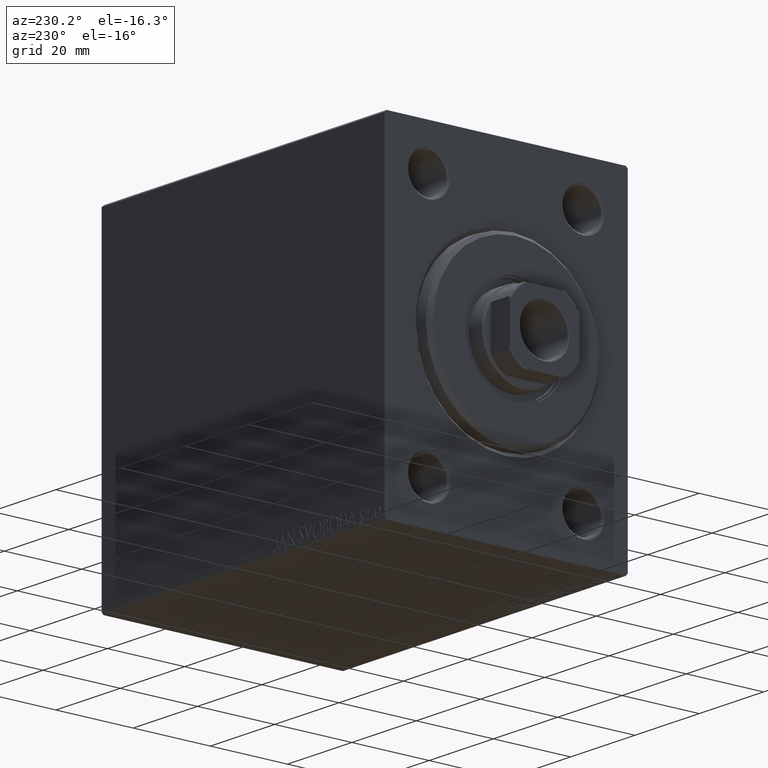
[diagram: clean part render]
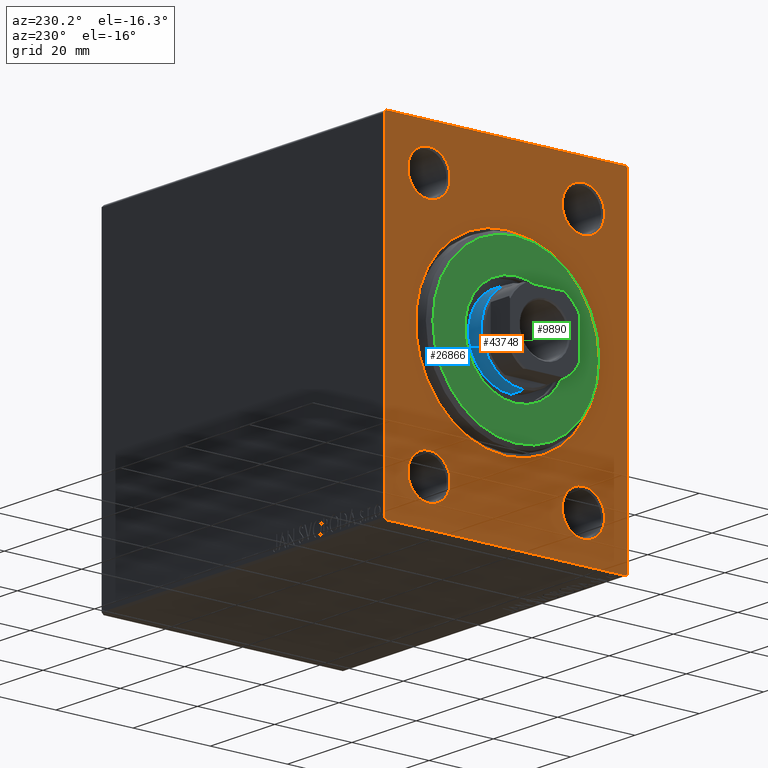
[diagram: same view with three faces highlighted in distinct colors, each labeled with its STEP entity id]
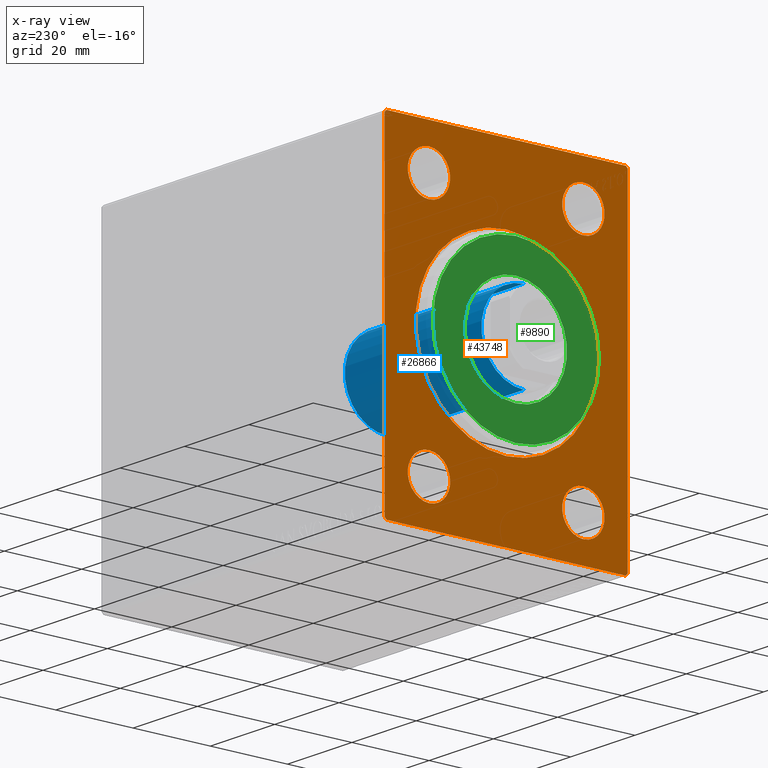
[diagram: x-ray of the same camera — body ghosted, the three highlighted faces saturated]
A machine part, auxiliary view with three faces highlighted in distinct colors.
The next image is the same camera in x-ray (body ghosted, the three faces saturated) — at least one of them is partly hidden behind the body in this view.
Their STEP definitions:

[orange] entity #43748 — the highlighted planar face has unit normal (1, 0, 0).
#185 = DIRECTION ( 'NONE',  ( 0.000000000000000000, 0.000000000000000000, -1.000000000000000000 ) ) ;
#293 = VERTEX_POINT ( 'NONE', #10388 ) ;
#498 = DIRECTION ( 'NONE',  ( 0.000000000000000000, 0.000000000000000000, -1.000000000000000000 ) ) ;
#501 = CARTESIAN_POINT ( 'NONE',  ( 0.000000000000000000, 31.50000000000001421, -42.50000000000000711 ) ) ;
#767 = AXIS2_PLACEMENT_3D ( 'NONE', #27422, #4430, #7776 ) ;
#861 = CARTESIAN_POINT ( 'NONE',  ( 0.000000000000000000, 19.99999999999999645, -25.99999999999999645 ) ) ;
#1044 = VERTEX_POINT ( 'NONE', #28765 ) ;
#1422 = CIRCLE ( 'NONE', #26369, 5.500000000000005329 ) ;
#1485 = VERTEX_POINT ( 'NONE', #14575 ) ;
#1946 = CARTESIAN_POINT ( 'NONE',  ( 0.000000000000000000, -31.50000000000000000, 42.00000000000001421 ) ) ;
#2414 = ORIENTED_EDGE ( 'NONE', *, *, #16840, .T. ) ;
#3098 = EDGE_CURVE ( 'NONE', #9893, #1485, #11134, .T. ) ;
#3298 = ORIENTED_EDGE ( 'NONE', *, *, #27449, .F. ) ;
#3315 = CARTESIAN_POINT ( 'NONE',  ( 0.000000000000000000, -20.00000000000000355, -31.50000000000000000 ) ) ;
#3836 = FACE_BOUND ( 'NONE', #8392, .T. ) ;
#4169 = ORIENTED_EDGE ( 'NONE', *, *, #14970, .T. ) ;
#4263 = EDGE_CURVE ( 'NONE', #36731, #24690, #29690, .T. ) ;
#4326 = VERTEX_POINT ( 'NONE', #25585 ) ;
#4430 = DIRECTION ( 'NONE',  ( 1.000000000000000000, 0.000000000000000000, 0.000000000000000000 ) ) ;
#4510 = EDGE_CURVE ( 'NONE', #43123, #11568, #6398, .T. ) ;
#4549 = ORIENTED_EDGE ( 'NONE', *, *, #11695, .T. ) ;
#5067 = CARTESIAN_POINT ( 'NONE',  ( 0.000000000000000000, 19.99999999999999645, 37.00000000000000711 ) ) ;
#5136 = CARTESIAN_POINT ( 'NONE',  ( 0.000000000000000000, -31.50000000000000000, -42.00000000000002842 ) ) ;
#5687 = AXIS2_PLACEMENT_3D ( 'NONE', #7738, #21125, #185 ) ;
#5939 = DIRECTION ( 'NONE',  ( 0.000000000000000000, 0.000000000000000000, -1.000000000000000000 ) ) ;
#6105 = EDGE_CURVE ( 'NONE', #38256, #28368, #24768, .T. ) ;
#6398 = LINE ( 'NONE', #37202, #14032 ) ;
#6748 = ORIENTED_EDGE ( 'NONE', *, *, #6105, .T. ) ;
#7023 = VERTEX_POINT ( 'NONE', #40750 ) ;
#7738 = CARTESIAN_POINT ( 'NONE',  ( 0.000000000000000000, 19.99999999999999645, 31.50000000000000000 ) ) ;
#7776 = DIRECTION ( 'NONE',  ( 0.000000000000000000, 0.000000000000000000, -1.000000000000000000 ) ) ;
#7930 = DIRECTION ( 'NONE',  ( -0.000000000000000000, 0.7071067811865474617, -0.7071067811865474617 ) ) ;
#7982 = EDGE_CURVE ( 'NONE', #43131, #1044, #37619, .T. ) ;
#8301 = AXIS2_PLACEMENT_3D ( 'NONE', #3315, #40807, #44140 ) ;
#8392 = EDGE_LOOP ( 'NONE', ( #21398, #6748 ) ) ;
#8599 = DIRECTION ( 'NONE',  ( 0.000000000000000000, -0.7071067811865474617, -0.7071067811865474617 ) ) ;
#8718 = VECTOR ( 'NONE', #8809, 1000.000000000000000 ) ;
#8809 = DIRECTION ( 'NONE',  ( 0.000000000000000000, 1.000000000000000000, 0.000000000000000000 ) ) ;
#8814 = CARTESIAN_POINT ( 'NONE',  ( 0.000000000000000000, -31.50000000000000000, 42.49999999999998579 ) ) ;
#9058 = CARTESIAN_POINT ( 'NONE',  ( 0.000000000000000000, 0.000000000000000000, 0.000000000000000000 ) ) ;
#9397 = AXIS2_PLACEMENT_3D ( 'NONE', #27709, #37982, #498 ) ;
#9451 = VERTEX_POINT ( 'NONE', #42656 ) ;
#9743 = EDGE_LOOP ( 'NONE', ( #27979, #24080 ) ) ;
#9893 = VERTEX_POINT ( 'NONE', #16288 ) ;
#9904 = DIRECTION ( 'NONE',  ( 0.000000000000000000, -1.000000000000000000, -1.101411730778925171E-16 ) ) ;
#10060 = ORIENTED_EDGE ( 'NONE', *, *, #32266, .F. ) ;
#10388 = CARTESIAN_POINT ( 'NONE',  ( 0.000000000000000000, 31.50000000000001421, -42.00000000000003553 ) ) ;
#10532 = FACE_BOUND ( 'NONE', #28910, .T. ) ;
#10748 = CARTESIAN_POINT ( 'NONE',  ( 0.000000000000000000, -31.00000000000002842, -42.50000000000000711 ) ) ;
#11134 = CIRCLE ( 'NONE', #37497, 23.49999999999998934 ) ;
#11568 = VERTEX_POINT ( 'NONE', #21231 ) ;
#11695 = EDGE_CURVE ( 'NONE', #293, #9451, #25545, .T. ) ;
#11834 = DIRECTION ( 'NONE',  ( 0.000000000000000000, 0.000000000000000000, -1.000000000000000000 ) ) ;
#12385 = LINE ( 'NONE', #8814, #36276 ) ;
#13074 = EDGE_CURVE ( 'NONE', #1044, #43131, #1422, .T. ) ;
#13875 = FACE_BOUND ( 'NONE', #14855, .T. ) ;
#14012 = EDGE_CURVE ( 'NONE', #26989, #35583, #34940, .T. ) ;
#14032 = VECTOR ( 'NONE', #7930, 1000.000000000000114 ) ;
#14098 = DIRECTION ( 'NONE',  ( 0.000000000000000000, -1.632680918566406547E-16, 1.000000000000000000 ) ) ;
#14575 = CARTESIAN_POINT ( 'NONE',  ( 0.000000000000000000, 2.877919977996279137E-15, -23.49999999999998934 ) ) ;
#14855 = EDGE_LOOP ( 'NONE', ( #20697, #4169 ) ) ;
#14970 = EDGE_CURVE ( 'NONE', #1485, #9893, #24300, .T. ) ;
#15016 = VECTOR ( 'NONE', #14098, 1000.000000000000000 ) ;
#15121 = CARTESIAN_POINT ( 'NONE',  ( 0.000000000000000000, -31.50000000000000000, 42.00000000000001421 ) ) ;
#15317 = EDGE_LOOP ( 'NONE', ( #31720, #2414 ) ) ;
#15401 = CIRCLE ( 'NONE', #33264, 5.500000000000005329 ) ;
#15523 = EDGE_CURVE ( 'NONE', #293, #11568, #24796, .T. ) ;
#15526 = VECTOR ( 'NONE', #23912, 1000.000000000000000 ) ;
#15531 = AXIS2_PLACEMENT_3D ( 'NONE', #20833, #38446, #17484 ) ;
#16288 = CARTESIAN_POINT ( 'NONE',  ( 0.000000000000000000, 0.000000000000000000, 23.49999999999998934 ) ) ;
#16840 = EDGE_CURVE ( 'NONE', #35583, #26989, #32778, .T. ) ;
#17265 = CARTESIAN_POINT ( 'NONE',  ( 0.000000000000000000, 31.50000000000000000, 42.49999999999999289 ) ) ;
#17452 = FACE_OUTER_BOUND ( 'NONE', #18053, .T. ) ;
#17453 = DIRECTION ( 'NONE',  ( 1.000000000000000000, 0.000000000000000000, 0.000000000000000000 ) ) ;
#17484 = DIRECTION ( 'NONE',  ( 0.000000000000000000, 0.000000000000000000, -1.000000000000000000 ) ) ;
#17673 = DIRECTION ( 'NONE',  ( 0.000000000000000000, 0.000000000000000000, -1.000000000000000000 ) ) ;
#18053 = EDGE_LOOP ( 'NONE', ( #10060, #27053, #3298, #34584, #22388, #4549, #43422, #28914 ) ) ;
#18147 = DIRECTION ( 'NONE',  ( 0.000000000000000000, 0.000000000000000000, -1.000000000000000000 ) ) ;
#18190 = CARTESIAN_POINT ( 'NONE',  ( 0.000000000000000000, 31.50000000000001421, -42.00000000000003553 ) ) ;
#18856 = DIRECTION ( 'NONE',  ( 1.000000000000000000, 0.000000000000000000, 0.000000000000000000 ) ) ;
#18884 = VERTEX_POINT ( 'NONE', #1946 ) ;
#19814 = CARTESIAN_POINT ( 'NONE',  ( 0.000000000000000000, -20.00000000000000355, 37.00000000000000711 ) ) ;
#19994 = ORIENTED_EDGE ( 'NONE', *, *, #4263, .T. ) ;
#20332 = EDGE_CURVE ( 'NONE', #18884, #7023, #21591, .T. ) ;
#20697 = ORIENTED_EDGE ( 'NONE', *, *, #3098, .T. ) ;
#20833 = CARTESIAN_POINT ( 'NONE',  ( 0.000000000000000000, -20.00000000000000355, 31.50000000000000000 ) ) ;
#21125 = DIRECTION ( 'NONE',  ( 1.000000000000000000, 0.000000000000000000, 0.000000000000000000 ) ) ;
#21231 = CARTESIAN_POINT ( 'NONE',  ( 0.000000000000000000, 31.50000000000000000, 42.00000000000002132 ) ) ;
#21398 = ORIENTED_EDGE ( 'NONE', *, *, #23796, .T. ) ;
#21591 = LINE ( 'NONE', #15121, #30736 ) ;
#21902 = CARTESIAN_POINT ( 'NONE',  ( 0.000000000000000000, 19.99999999999999645, -37.00000000000000711 ) ) ;
#22388 = ORIENTED_EDGE ( 'NONE', *, *, #15523, .F. ) ;
#22892 = CARTESIAN_POINT ( 'NONE',  ( 0.000000000000000000, 19.99999999999999645, 25.99999999999999645 ) ) ;
#23796 = EDGE_CURVE ( 'NONE', #28368, #38256, #15401, .T. ) ;
#23912 = DIRECTION ( 'NONE',  ( -0.000000000000000000, -0.7071067811865426878, 0.7071067811865524577 ) ) ;
#24080 = ORIENTED_EDGE ( 'NONE', *, *, #13074, .T. ) ;
#24133 = LINE ( 'NONE', #10748, #15526 ) ;
#24142 = CARTESIAN_POINT ( 'NONE',  ( 0.000000000000000000, 19.99999999999999645, 31.50000000000000000 ) ) ;
#24300 = CIRCLE ( 'NONE', #767, 23.49999999999998934 ) ;
#24690 = VERTEX_POINT ( 'NONE', #43775 ) ;
#24719 = DIRECTION ( 'NONE',  ( -0.000000000000000000, 0.7071067811865474617, 0.7071067811865474617 ) ) ;
#24768 = CIRCLE ( 'NONE', #31179, 5.500000000000005329 ) ;
#24796 = LINE ( 'NONE', #501, #15016 ) ;
#25298 = CARTESIAN_POINT ( 'NONE',  ( 0.000000000000000000, -20.00000000000000355, -31.50000000000000000 ) ) ;
#25545 = LINE ( 'NONE', #18190, #28453 ) ;
#25585 = CARTESIAN_POINT ( 'NONE',  ( 0.000000000000000000, -31.00000000000002842, -42.50000000000000711 ) ) ;
#25721 = CARTESIAN_POINT ( 'NONE',  ( 0.000000000000000000, -20.00000000000000355, 31.50000000000000000 ) ) ;
#26369 = AXIS2_PLACEMENT_3D ( 'NONE', #25721, #41782, #18147 ) ;
#26989 = VERTEX_POINT ( 'NONE', #5067 ) ;
#27053 = ORIENTED_EDGE ( 'NONE', *, *, #20332, .T. ) ;
#27091 = AXIS2_PLACEMENT_3D ( 'NONE', #24142, #17453, #17673 ) ;
#27422 = CARTESIAN_POINT ( 'NONE',  ( 0.000000000000000000, 0.000000000000000000, 0.000000000000000000 ) ) ;
#27449 = EDGE_CURVE ( 'NONE', #43123, #7023, #37567, .T. ) ;
#27709 = CARTESIAN_POINT ( 'NONE',  ( 0.000000000000000000, 0.000000000000000000, 0.000000000000000000 ) ) ;
#27979 = ORIENTED_EDGE ( 'NONE', *, *, #7982, .T. ) ;
#28368 = VERTEX_POINT ( 'NONE', #861 ) ;
#28453 = VECTOR ( 'NONE', #8599, 1000.000000000000114 ) ;
#28765 = CARTESIAN_POINT ( 'NONE',  ( 0.000000000000000000, -20.00000000000000355, 25.99999999999999645 ) ) ;
#28910 = EDGE_LOOP ( 'NONE', ( #19994, #35513 ) ) ;
#28914 = ORIENTED_EDGE ( 'NONE', *, *, #29236, .T. ) ;
#29150 = AXIS2_PLACEMENT_3D ( 'NONE', #25298, #38707, #38918 ) ;
#29236 = EDGE_CURVE ( 'NONE', #4326, #41751, #24133, .T. ) ;
#29690 = CIRCLE ( 'NONE', #8301, 5.500000000000005329 ) ;
#30473 = VECTOR ( 'NONE', #9904, 1000.000000000000000 ) ;
#30736 = VECTOR ( 'NONE', #24719, 1000.000000000000114 ) ;
#31064 = PLANE ( 'NONE',  #9397 ) ;
#31179 = AXIS2_PLACEMENT_3D ( 'NONE', #39498, #39285, #11834 ) ;
#31720 = ORIENTED_EDGE ( 'NONE', *, *, #14012, .T. ) ;
#32248 = LINE ( 'NONE', #39590, #8718 ) ;
#32266 = EDGE_CURVE ( 'NONE', #18884, #41751, #12385, .T. ) ;
#32287 = CARTESIAN_POINT ( 'NONE',  ( 0.000000000000000000, -20.00000000000000355, -25.99999999999999645 ) ) ;
#32466 = DIRECTION ( 'NONE',  ( 0.000000000000000000, 0.000000000000000000, -1.000000000000000000 ) ) ;
#32778 = CIRCLE ( 'NONE', #5687, 5.500000000000005329 ) ;
#33264 = AXIS2_PLACEMENT_3D ( 'NONE', #35813, #18856, #32466 ) ;
#34418 = FACE_BOUND ( 'NONE', #15317, .T. ) ;
#34584 = ORIENTED_EDGE ( 'NONE', *, *, #4510, .T. ) ;
#34940 = CIRCLE ( 'NONE', #27091, 5.500000000000005329 ) ;
#35513 = ORIENTED_EDGE ( 'NONE', *, *, #36963, .T. ) ;
#35583 = VERTEX_POINT ( 'NONE', #22892 ) ;
#35813 = CARTESIAN_POINT ( 'NONE',  ( 0.000000000000000000, 19.99999999999999645, -31.50000000000000000 ) ) ;
#36276 = VECTOR ( 'NONE', #36495, 1000.000000000000000 ) ;
#36283 = DIRECTION ( 'NONE',  ( 1.000000000000000000, 0.000000000000000000, 0.000000000000000000 ) ) ;
#36495 = DIRECTION ( 'NONE',  ( 0.000000000000000000, 0.000000000000000000, -1.000000000000000000 ) ) ;
#36731 = VERTEX_POINT ( 'NONE', #32287 ) ;
#36963 = EDGE_CURVE ( 'NONE', #24690, #36731, #38428, .T. ) ;
#36995 = CARTESIAN_POINT ( 'NONE',  ( 0.000000000000000000, 31.00000000000002842, 42.49999999999999289 ) ) ;
#37202 = CARTESIAN_POINT ( 'NONE',  ( 0.000000000000000000, 31.00000000000002842, 42.49999999999999289 ) ) ;
#37497 = AXIS2_PLACEMENT_3D ( 'NONE', #9058, #36283, #5939 ) ;
#37567 = LINE ( 'NONE', #17265, #30473 ) ;
#37619 = CIRCLE ( 'NONE', #15531, 5.500000000000005329 ) ;
#37763 = FACE_BOUND ( 'NONE', #9743, .T. ) ;
#37982 = DIRECTION ( 'NONE',  ( 1.000000000000000000, 0.000000000000000000, 0.000000000000000000 ) ) ;
#38256 = VERTEX_POINT ( 'NONE', #21902 ) ;
#38428 = CIRCLE ( 'NONE', #29150, 5.500000000000005329 ) ;
#38446 = DIRECTION ( 'NONE',  ( 1.000000000000000000, 0.000000000000000000, 0.000000000000000000 ) ) ;
#38707 = DIRECTION ( 'NONE',  ( 1.000000000000000000, 0.000000000000000000, 0.000000000000000000 ) ) ;
#38918 = DIRECTION ( 'NONE',  ( 0.000000000000000000, 0.000000000000000000, -1.000000000000000000 ) ) ;
#39285 = DIRECTION ( 'NONE',  ( 1.000000000000000000, 0.000000000000000000, 0.000000000000000000 ) ) ;
#39498 = CARTESIAN_POINT ( 'NONE',  ( 0.000000000000000000, 19.99999999999999645, -31.50000000000000000 ) ) ;
#39590 = CARTESIAN_POINT ( 'NONE',  ( 0.000000000000000000, -31.50000000000000000, -42.50000000000000711 ) ) ;
#40750 = CARTESIAN_POINT ( 'NONE',  ( 0.000000000000000000, -31.00000000000002842, 42.49999999999998579 ) ) ;
#40807 = DIRECTION ( 'NONE',  ( 1.000000000000000000, 0.000000000000000000, 0.000000000000000000 ) ) ;
#41751 = VERTEX_POINT ( 'NONE', #5136 ) ;
#41782 = DIRECTION ( 'NONE',  ( 1.000000000000000000, 0.000000000000000000, 0.000000000000000000 ) ) ;
#42656 = CARTESIAN_POINT ( 'NONE',  ( 0.000000000000000000, 31.00000000000004263, -42.50000000000000711 ) ) ;
#43123 = VERTEX_POINT ( 'NONE', #36995 ) ;
#43131 = VERTEX_POINT ( 'NONE', #19814 ) ;
#43422 = ORIENTED_EDGE ( 'NONE', *, *, #44051, .F. ) ;
#43748 = ADVANCED_FACE ( 'NONE', ( #13875, #10532, #37763, #34418, #3836, #17452 ), #31064, .F. ) ;
#43775 = CARTESIAN_POINT ( 'NONE',  ( 0.000000000000000000, -20.00000000000000355, -37.00000000000000711 ) ) ;
#44051 = EDGE_CURVE ( 'NONE', #4326, #9451, #32248, .T. ) ;
#44140 = DIRECTION ( 'NONE',  ( 0.000000000000000000, 0.000000000000000000, -1.000000000000000000 ) ) ;

[blue] entity #26866 — the highlighted cylindrical surface (partial cylindrical patch) has radius 11 mm, axis along (1, -0, -0).
#61 = CIRCLE ( 'NONE', #5747, 11.00000000000000000 ) ;
#3099 = DIRECTION ( 'NONE',  ( -0.000000000000000000, -0.000000000000000000, -1.000000000000000000 ) ) ;
#3525 = CARTESIAN_POINT ( 'NONE',  ( 0.000000000000000000, 0.000000000000000000, 81.99999999999998579 ) ) ;
#3668 = DIRECTION ( 'NONE',  ( 0.000000000000000000, 0.000000000000000000, 1.000000000000000000 ) ) ;
#5684 = VECTOR ( 'NONE', #20863, 1000.000000000000000 ) ;
#5747 = AXIS2_PLACEMENT_3D ( 'NONE', #41137, #3668, #30236 ) ;
#6678 = EDGE_CURVE ( 'NONE', #26948, #31563, #10663, .T. ) ;
#7909 = CARTESIAN_POINT ( 'NONE',  ( -11.00000000000000000, 0.000000000000000000, 81.99999999999998579 ) ) ;
#8262 = ORIENTED_EDGE ( 'NONE', *, *, #34980, .F. ) ;
#9206 = AXIS2_PLACEMENT_3D ( 'NONE', #19866, #23852, #10037 ) ;
#9907 = EDGE_CURVE ( 'NONE', #35747, #26948, #21292, .T. ) ;
#10016 = FACE_OUTER_BOUND ( 'NONE', #40976, .T. ) ;
#10037 = DIRECTION ( 'NONE',  ( 1.000000000000000000, 0.000000000000000000, 0.000000000000000000 ) ) ;
#10663 = LINE ( 'NONE', #14001, #20473 ) ;
#11394 = ORIENTED_EDGE ( 'NONE', *, *, #9907, .T. ) ;
#11660 = CARTESIAN_POINT ( 'NONE',  ( 11.00000000000000000, 1.347111479062088405E-15, 39.00000000000000000 ) ) ;
#11758 = CARTESIAN_POINT ( 'NONE',  ( 11.00000000000000000, 1.347111479062088405E-15, 81.49999999999997158 ) ) ;
#13788 = DIRECTION ( 'NONE',  ( -1.000000000000000000, 0.000000000000000000, 0.000000000000000000 ) ) ;
#14001 = CARTESIAN_POINT ( 'NONE',  ( 11.00000000000000000, 1.347111479062088405E-15, 81.99999999999998579 ) ) ;
#15091 = CARTESIAN_POINT ( 'NONE',  ( -11.00000000000000000, 0.000000000000000000, 81.49999999999997158 ) ) ;
#19866 = CARTESIAN_POINT ( 'NONE',  ( 0.000000000000000000, 0.000000000000000000, 81.49999999999997158 ) ) ;
#20103 = ORIENTED_EDGE ( 'NONE', *, *, #40683, .T. ) ;
#20473 = VECTOR ( 'NONE', #27615, 1000.000000000000000 ) ;
#20863 = DIRECTION ( 'NONE',  ( -0.000000000000000000, -0.000000000000000000, -1.000000000000000000 ) ) ;
#21163 = AXIS2_PLACEMENT_3D ( 'NONE', #3525, #3099, #13788 ) ;
#21292 = CIRCLE ( 'NONE', #9206, 11.00000000000000000 ) ;
#23852 = DIRECTION ( 'NONE',  ( 0.000000000000000000, 0.000000000000000000, -1.000000000000000000 ) ) ;
#24369 = ORIENTED_EDGE ( 'NONE', *, *, #6678, .T. ) ;
#26494 = CARTESIAN_POINT ( 'NONE',  ( -11.00000000000000000, 0.000000000000000000, 39.00000000000000000 ) ) ;
#26866 = ADVANCED_FACE ( 'NONE', ( #10016 ), #34101, .T. ) ;
#26948 = VERTEX_POINT ( 'NONE', #11758 ) ;
#27615 = DIRECTION ( 'NONE',  ( -0.000000000000000000, -0.000000000000000000, -1.000000000000000000 ) ) ;
#28642 = VERTEX_POINT ( 'NONE', #26494 ) ;
#30236 = DIRECTION ( 'NONE',  ( 1.000000000000000000, 0.000000000000000000, 0.000000000000000000 ) ) ;
#31563 = VERTEX_POINT ( 'NONE', #11660 ) ;
#34101 = CYLINDRICAL_SURFACE ( 'NONE', #21163, 11.00000000000000000 ) ;
#34980 = EDGE_CURVE ( 'NONE', #35747, #28642, #41804, .T. ) ;
#35747 = VERTEX_POINT ( 'NONE', #15091 ) ;
#40683 = EDGE_CURVE ( 'NONE', #31563, #28642, #61, .T. ) ;
#40976 = EDGE_LOOP ( 'NONE', ( #11394, #24369, #20103, #8262 ) ) ;
#41137 = CARTESIAN_POINT ( 'NONE',  ( 0.000000000000000000, 0.000000000000000000, 39.00000000000000000 ) ) ;
#41804 = LINE ( 'NONE', #7909, #5684 ) ;

[green] entity #9890 — the highlighted planar face has unit normal (-1, 0, 0).
#2616 = CIRCLE ( 'NONE', #37532, 13.25000000000000178 ) ;
#3403 = EDGE_CURVE ( 'NONE', #11303, #6192, #33985, .T. ) ;
#4141 = EDGE_CURVE ( 'NONE', #26045, #28849, #2616, .T. ) ;
#6192 = VERTEX_POINT ( 'NONE', #26325 ) ;
#6244 = DIRECTION ( 'NONE',  ( 1.000000000000000000, -0.000000000000000000, 0.000000000000000000 ) ) ;
#7737 = EDGE_LOOP ( 'NONE', ( #23448, #25692 ) ) ;
#8569 = DIRECTION ( 'NONE',  ( 1.000000000000000000, -0.000000000000000000, 0.000000000000000000 ) ) ;
#9890 = ADVANCED_FACE ( 'NONE', ( #27199, #43718 ), #30130, .T. ) ;
#10598 = AXIS2_PLACEMENT_3D ( 'NONE', #13160, #6244, #16522 ) ;
#11303 = VERTEX_POINT ( 'NONE', #27319 ) ;
#11816 = CARTESIAN_POINT ( 'NONE',  ( 3.000000000000000000, 0.000000000000000000, 0.000000000000000000 ) ) ;
#12043 = DIRECTION ( 'NONE',  ( 1.000000000000000000, 0.000000000000000000, 0.000000000000000000 ) ) ;
#13160 = CARTESIAN_POINT ( 'NONE',  ( 3.000000000000000000, 0.000000000000000000, 0.000000000000000000 ) ) ;
#15136 = CARTESIAN_POINT ( 'NONE',  ( 3.000000000000000000, 0.000000000000000000, 0.000000000000000000 ) ) ;
#15386 = CARTESIAN_POINT ( 'NONE',  ( 3.000000000000000000, 0.000000000000000000, 0.000000000000000000 ) ) ;
#15807 = DIRECTION ( 'NONE',  ( 0.000000000000000000, 0.000000000000000000, -1.000000000000000000 ) ) ;
#16522 = DIRECTION ( 'NONE',  ( 0.000000000000000000, 0.000000000000000000, -1.000000000000000000 ) ) ;
#16649 = EDGE_LOOP ( 'NONE', ( #23978, #17558 ) ) ;
#17558 = ORIENTED_EDGE ( 'NONE', *, *, #4141, .F. ) ;
#19383 = DIRECTION ( 'NONE',  ( 1.000000000000000000, -0.000000000000000000, 0.000000000000000000 ) ) ;
#19540 = CARTESIAN_POINT ( 'NONE',  ( 3.000000000000000000, 0.000000000000000000, -13.25000000000000178 ) ) ;
#19947 = CIRCLE ( 'NONE', #28448, 21.50000000000000355 ) ;
#22989 = DIRECTION ( 'NONE',  ( 0.000000000000000000, 0.000000000000000000, -1.000000000000000000 ) ) ;
#23448 = ORIENTED_EDGE ( 'NONE', *, *, #33676, .T. ) ;
#23978 = ORIENTED_EDGE ( 'NONE', *, *, #24155, .F. ) ;
#24155 = EDGE_CURVE ( 'NONE', #28849, #26045, #37522, .T. ) ;
#25692 = ORIENTED_EDGE ( 'NONE', *, *, #3403, .T. ) ;
#26045 = VERTEX_POINT ( 'NONE', #39419 ) ;
#26325 = CARTESIAN_POINT ( 'NONE',  ( 3.000000000000000000, 0.000000000000000000, 21.50000000000000355 ) ) ;
#27199 = FACE_OUTER_BOUND ( 'NONE', #7737, .T. ) ;
#27319 = CARTESIAN_POINT ( 'NONE',  ( 3.000000000000000000, 2.694222958124177598E-15, -21.50000000000000355 ) ) ;
#28448 = AXIS2_PLACEMENT_3D ( 'NONE', #15136, #19383, #15807 ) ;
#28849 = VERTEX_POINT ( 'NONE', #19540 ) ;
#29663 = DIRECTION ( 'NONE',  ( 0.000000000000000000, 0.000000000000000000, -1.000000000000000000 ) ) ;
#30130 = PLANE ( 'NONE',  #10598 ) ;
#32556 = AXIS2_PLACEMENT_3D ( 'NONE', #39135, #8569, #35794 ) ;
#33676 = EDGE_CURVE ( 'NONE', #6192, #11303, #19947, .T. ) ;
#33985 = CIRCLE ( 'NONE', #32556, 21.50000000000000355 ) ;
#35794 = DIRECTION ( 'NONE',  ( 0.000000000000000000, 0.000000000000000000, -1.000000000000000000 ) ) ;
#37522 = CIRCLE ( 'NONE', #41758, 13.25000000000000178 ) ;
#37532 = AXIS2_PLACEMENT_3D ( 'NONE', #11816, #39035, #29663 ) ;
#39035 = DIRECTION ( 'NONE',  ( 1.000000000000000000, 0.000000000000000000, 0.000000000000000000 ) ) ;
#39135 = CARTESIAN_POINT ( 'NONE',  ( 3.000000000000000000, 0.000000000000000000, 0.000000000000000000 ) ) ;
#39419 = CARTESIAN_POINT ( 'NONE',  ( 3.000000000000000000, 1.622657008870243277E-15, 13.25000000000000178 ) ) ;
#41758 = AXIS2_PLACEMENT_3D ( 'NONE', #15386, #12043, #22989 ) ;
#43718 = FACE_BOUND ( 'NONE', #16649, .T. ) ;